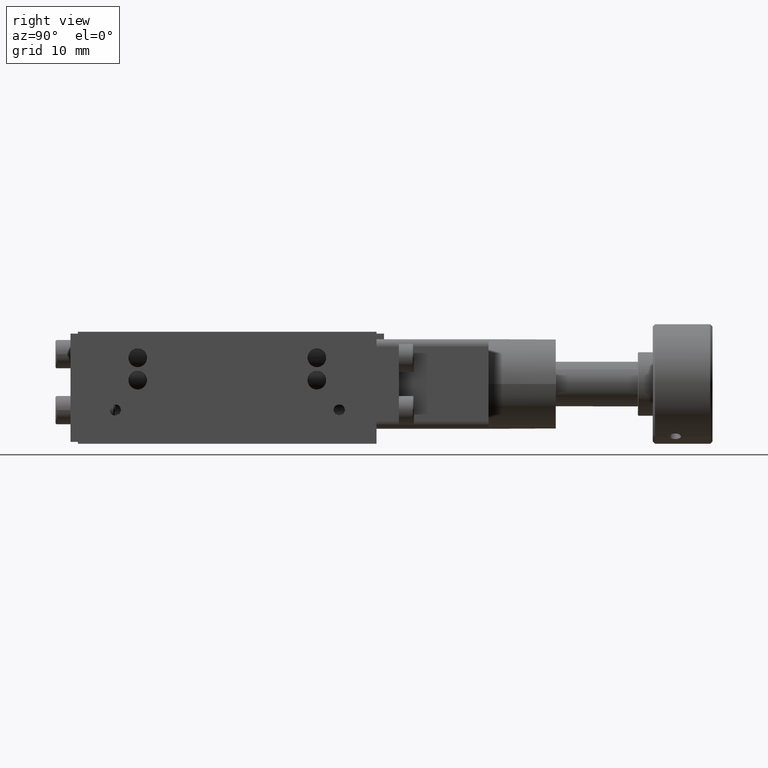
[diagram: clean part render]
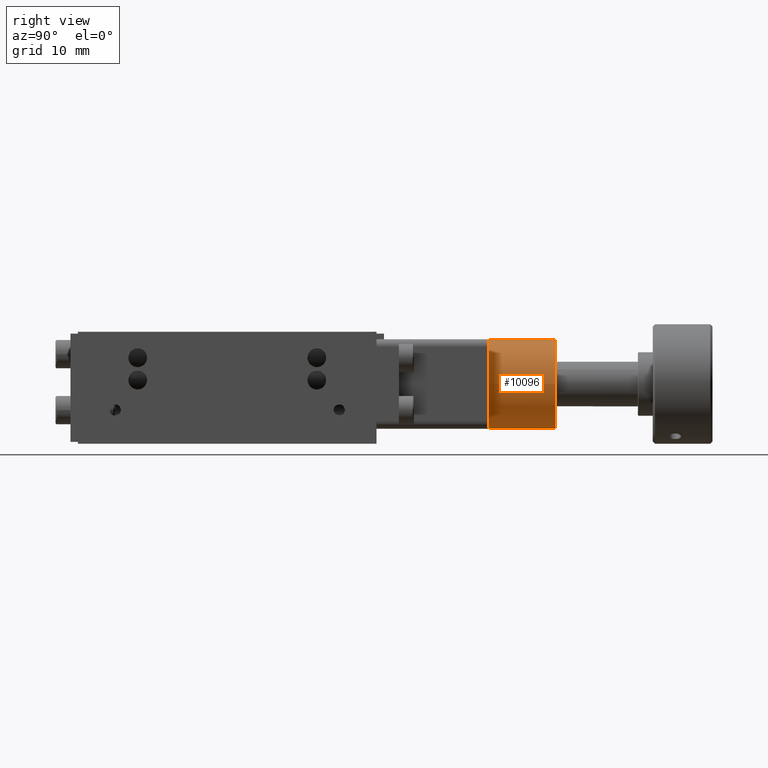
[diagram: same view with one face highlighted and labeled with its STEP entity id]
A machine part, right view. The second image highlights one B-rep face of the part: STEP entity #10096.
In plain terms, the highlighted cylindrical surface (bore or boss wall) has radius 6 mm, axis along (-0, -1, -0).
Its self-contained STEP definition (entity closure, byte-faithful):
#333=CYLINDRICAL_SURFACE('',#10732,6.);
#1121=FACE_OUTER_BOUND('',#1674,.T.);
#1674=EDGE_LOOP('',(#7939,#7940,#7941,#7942,#7943,#7944,#7945));
#2487=LINE('',#16233,#3352);
#3352=VECTOR('',#12415,6.);
#3850=CIRCLE('',#10712,6.);
#3851=CIRCLE('',#10713,6.);
#3853=CIRCLE('',#10718,6.);
#3861=CIRCLE('',#10733,6.);
#3862=CIRCLE('',#10734,6.);
#4577=VERTEX_POINT('',#16150);
#4585=VERTEX_POINT('',#16172);
#4586=VERTEX_POINT('',#16174);
#4604=VERTEX_POINT('',#16232);
#4605=VERTEX_POINT('',#16234);
#5757=EDGE_CURVE('',#4586,#4585,#3850,.T.);
#5758=EDGE_CURVE('',#4577,#4586,#3851,.T.);
#5763=EDGE_CURVE('',#4585,#4577,#3853,.T.);
#5787=EDGE_CURVE('',#4586,#4604,#2487,.T.);
#5788=EDGE_CURVE('',#4605,#4604,#3861,.T.);
#5789=EDGE_CURVE('',#4604,#4605,#3862,.T.);
#7939=ORIENTED_EDGE('',*,*,#5763,.T.);
#7940=ORIENTED_EDGE('',*,*,#5758,.T.);
#7941=ORIENTED_EDGE('',*,*,#5787,.T.);
#7942=ORIENTED_EDGE('',*,*,#5788,.F.);
#7943=ORIENTED_EDGE('',*,*,#5789,.F.);
#7944=ORIENTED_EDGE('',*,*,#5787,.F.);
#7945=ORIENTED_EDGE('',*,*,#5757,.T.);
#10096=ADVANCED_FACE('',(#1121),#333,.T.);
#10712=AXIS2_PLACEMENT_3D('',#16175,#12354,#12355);
#10713=AXIS2_PLACEMENT_3D('',#16176,#12356,#12357);
#10718=AXIS2_PLACEMENT_3D('',#16186,#12369,#12370);
#10732=AXIS2_PLACEMENT_3D('',#16231,#12413,#12414);
#10733=AXIS2_PLACEMENT_3D('',#16235,#12416,#12417);
#10734=AXIS2_PLACEMENT_3D('',#16236,#12418,#12419);
#12354=DIRECTION('center_axis',(5.55111512312578E-17,1.,2.91703841149741E-62));
#12355=DIRECTION('ref_axis',(-1.,5.55111512312578E-17,9.93008144079619E-47));
#12356=DIRECTION('center_axis',(5.55111512312578E-17,1.,2.91703841149741E-62));
#12357=DIRECTION('ref_axis',(-1.,5.55111512312578E-17,9.93008144079619E-47));
#12369=DIRECTION('center_axis',(5.55111512312578E-17,1.,2.91703841149741E-62));
#12370=DIRECTION('ref_axis',(-1.,5.55111512312578E-17,9.93008144079619E-47));
#12413=DIRECTION('center_axis',(-5.55111512312578E-17,-1.,-2.91703841149741E-62));
#12414=DIRECTION('ref_axis',(-1.,5.55111512312578E-17,9.93008144079619E-47));
#12415=DIRECTION('',(5.55111512312578E-17,1.,2.91703841149741E-62));
#12416=DIRECTION('center_axis',(5.55111512312578E-17,1.,2.91703841149741E-62));
#12417=DIRECTION('ref_axis',(-1.,5.55111512312578E-17,9.93008144079619E-47));
#12418=DIRECTION('center_axis',(5.55111512312578E-17,1.,2.91703841149741E-62));
#12419=DIRECTION('ref_axis',(-1.,5.55111512312578E-17,9.93008144079619E-47));
#16150=CARTESIAN_POINT('',(11.3000000000001,55.,8.5));
#16172=CARTESIAN_POINT('',(11.3000000000001,55.,-3.5));
#16174=CARTESIAN_POINT('',(17.3000000000001,55.,2.5));
#16175=CARTESIAN_POINT('Origin',(11.3000000000001,55.,2.5));
#16176=CARTESIAN_POINT('Origin',(11.3000000000001,55.,2.5));
#16186=CARTESIAN_POINT('Origin',(11.3000000000001,55.,2.5));
#16231=CARTESIAN_POINT('Origin',(11.3000000000001,64.,2.5));
#16232=CARTESIAN_POINT('',(17.3000000000001,64.,2.5));
#16233=CARTESIAN_POINT('',(17.3000000000001,64.,2.5));
#16234=CARTESIAN_POINT('',(5.30000000000007,64.,2.5));
#16235=CARTESIAN_POINT('Origin',(11.3000000000001,64.,2.5));
#16236=CARTESIAN_POINT('Origin',(11.3000000000001,64.,2.5));